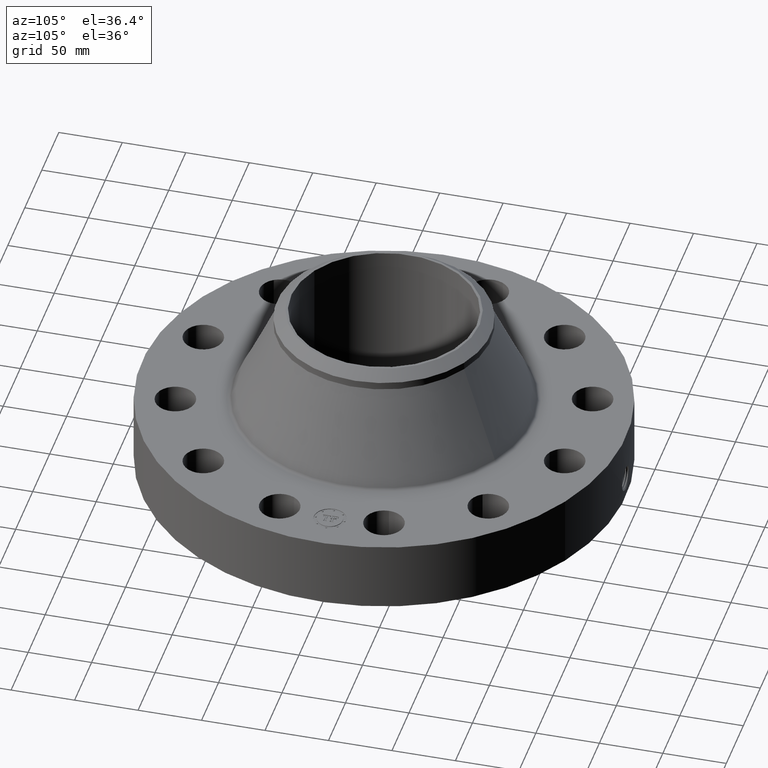
[diagram: clean part render]
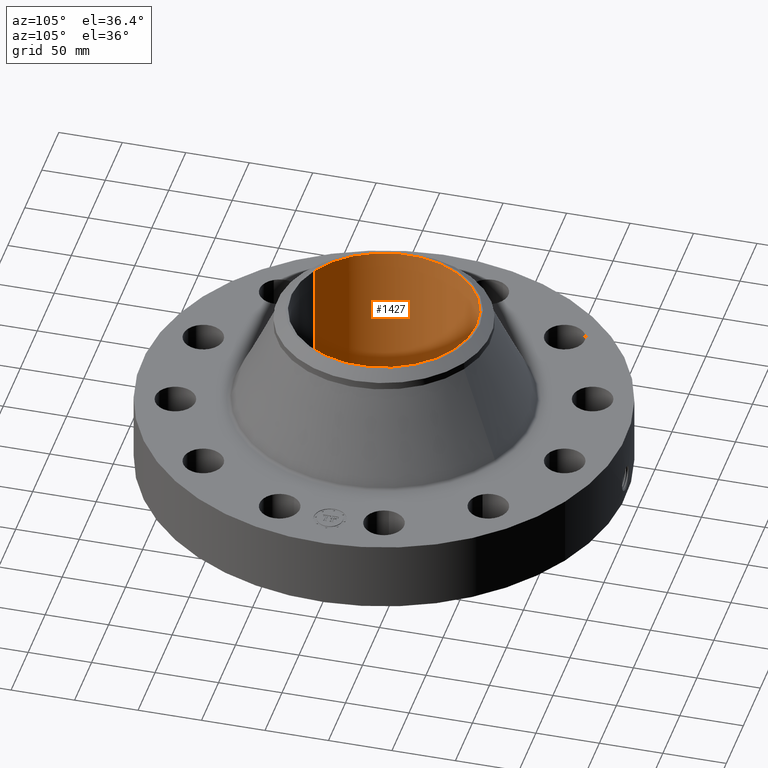
[diagram: same view with one face highlighted and labeled with its STEP entity id]
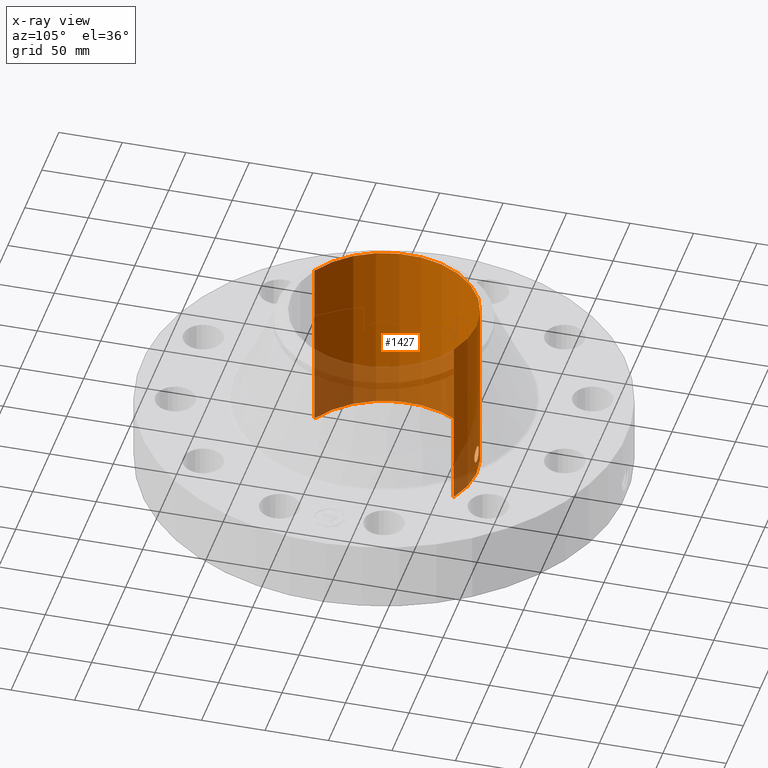
[diagram: x-ray of the same camera — body ghosted, the highlighted face saturated]
A machine part, auxiliary view. The second image highlights one B-rep face of the part: STEP entity #1427.
The next image is the same camera in x-ray: the body ghosted, the highlighted face saturated — about 29% of this face is hidden behind the body in this view.
In plain terms, the highlighted cylindrical surface (partial cylindrical patch) has radius 73.1647 mm, axis along (0, 0, -1).
Its self-contained STEP definition (entity closure, byte-faithful):
#259=AXIS2_PLACEMENT_3D('Circle Axis2P3D',#257,#258,$) ;
#1304=AXIS2_PLACEMENT_3D('Cylinder Axis2P3D',#1301,#1302,#1303) ;
#1376=AXIS2_PLACEMENT_3D('Circle Axis2P3D',#1374,#1375,$) ;
#252=CARTESIAN_POINT('Vertex',(1.38098526395,2.52787656954,0.250000000001)) ;
#254=CARTESIAN_POINT('Vertex',(-1.38098526395,-2.52787656954,0.250000000001)) ;
#257=CARTESIAN_POINT('Axis2P3D Location',(0.,0.,0.250000000001)) ;
#1301=CARTESIAN_POINT('Axis2P3D Location',(0.,0.,3.00000000001)) ;
#1310=CARTESIAN_POINT('Vertex',(1.38098526395,2.52787656954,5.75000000002)) ;
#1312=CARTESIAN_POINT('Vertex',(-1.38098526395,-2.52787656954,5.75000000002)) ;
#1315=CARTESIAN_POINT('Line Origine',(1.38098526395,2.52787656954,3.00000000001)) ;
#1320=CARTESIAN_POINT('Line Origine',(-1.38098526395,-2.52787656954,3.00000000001)) ;
#1374=CARTESIAN_POINT('Axis2P3D Location',(0.,0.,5.75000000002)) ;
#1386=CARTESIAN_POINT('Control Point',(0.219395640473,2.87213262281,1.05985638466)) ;
#1387=CARTESIAN_POINT('Control Point',(0.206922351999,2.87308542878,1.08268858606)) ;
#1388=CARTESIAN_POINT('Control Point',(0.191481712066,2.87419679655,1.10389307756)) ;
#1389=CARTESIAN_POINT('Control Point',(0.173354194287,2.87538062812,1.12296014847)) ;
#1390=CARTESIAN_POINT('Control Point',(0.112199588933,2.87880172466,1.17240469316)) ;
#1391=CARTESIAN_POINT('Control Point',(0.0350911619158,2.88102435561,1.19594771471)) ;
#1392=CARTESIAN_POINT('Control Point',(-0.0194446568636,2.88119275664,1.19761224593)) ;
#1393=CARTESIAN_POINT('Control Point',(-0.123995866117,2.87875349424,1.17252930704)) ;
#1394=CARTESIAN_POINT('Control Point',(-0.20302008793,2.87369160983,1.09975234341)) ;
#1395=CARTESIAN_POINT('Control Point',(-0.232033505249,2.87119266303,1.05361428798)) ;
#1396=CARTESIAN_POINT('Control Point',(-0.25581045403,2.86912592234,0.975428323767)) ;
#1397=CARTESIAN_POINT('Control Point',(-0.248335741922,2.86977503044,0.895964558502)) ;
#1398=CARTESIAN_POINT('Control Point',(-0.242100701747,2.87032479534,0.869317071092)) ;
#1399=CARTESIAN_POINT('Control Point',(-0.232348019503,2.87114322021,0.843852786133)) ;
#1400=CARTESIAN_POINT('Control Point',(-0.219395640473,2.87213262281,0.820143615352)) ;
#1401=CARTESIAN_POINT('Vertex',(0.219395640473,2.87213262281,1.05985638466)) ;
#1403=CARTESIAN_POINT('Vertex',(-0.219395640473,2.87213262281,0.820143615352)) ;
#1407=CARTESIAN_POINT('Control Point',(-0.219395640473,2.87213262281,0.820143615352)) ;
#1408=CARTESIAN_POINT('Control Point',(-0.206922351995,2.87308542878,0.797311413944)) ;
#1409=CARTESIAN_POINT('Control Point',(-0.191481712058,2.87419679655,0.776106922433)) ;
#1410=CARTESIAN_POINT('Control Point',(-0.173354194298,2.87538062812,0.757039851545)) ;
#1411=CARTESIAN_POINT('Control Point',(-0.112199588946,2.87880172466,0.707595306856)) ;
#1412=CARTESIAN_POINT('Control Point',(-0.0350911619317,2.88102435561,0.6840522853)) ;
#1413=CARTESIAN_POINT('Control Point',(0.0194446568755,2.88119275664,0.682387754085)) ;
#1414=CARTESIAN_POINT('Control Point',(0.123995866122,2.87875349424,0.707470692974)) ;
#1415=CARTESIAN_POINT('Control Point',(0.20302008793,2.87369160983,0.780247656595)) ;
#1416=CARTESIAN_POINT('Control Point',(0.232033505246,2.87119266303,0.826385712029)) ;
#1417=CARTESIAN_POINT('Control Point',(0.255810454031,2.86912592234,0.904571676238)) ;
#1418=CARTESIAN_POINT('Control Point',(0.248335741922,2.86977503044,0.984035441505)) ;
#1419=CARTESIAN_POINT('Control Point',(0.242100701748,2.87032479534,1.01068292892)) ;
#1420=CARTESIAN_POINT('Control Point',(0.232348019503,2.87114322021,1.03614721387)) ;
#1421=CARTESIAN_POINT('Control Point',(0.219395640473,2.87213262281,1.05985638466)) ;
#258=DIRECTION('Axis2P3D Direction',(0.,0.,-0.0393700787402)) ;
#1302=DIRECTION('Axis2P3D Direction',(0.,0.,-0.0393700787402)) ;
#1303=DIRECTION('Axis2P3D XDirection',(-0.0188750212049,-0.0345504945626,0.)) ;
#1316=DIRECTION('Vector Direction',(0.,0.,-0.0393700787402)) ;
#1321=DIRECTION('Vector Direction',(0.,0.,-0.0393700787402)) ;
#1375=DIRECTION('Axis2P3D Direction',(0.,0.,-0.0393700787402)) ;
#1317=VECTOR('Line Direction',#1316,0.0393700787402) ;
#1322=VECTOR('Line Direction',#1321,0.0393700787402) ;
#1380=ORIENTED_EDGE('',*,*,#1378,.F.) ;
#1381=ORIENTED_EDGE('',*,*,#1324,.T.) ;
#1382=ORIENTED_EDGE('',*,*,#261,.T.) ;
#1383=ORIENTED_EDGE('',*,*,#1319,.F.) ;
#1424=ORIENTED_EDGE('',*,*,#1405,.F.) ;
#1425=ORIENTED_EDGE('',*,*,#1422,.F.) ;
#1426=FACE_BOUND('',#1423,.T.) ;
#1427=ADVANCED_FACE('PartBody',(#1384,#1426),#1305,.F.) ;
#1385=B_SPLINE_CURVE_WITH_KNOTS('',5,(#1386,#1387,#1388,#1389,#1390,#1391,#1392,#1393,#1394,#1395,#1396,#1397,#1398,#1399,#1400),.UNSPECIFIED.,.F.,.U.,(6,3,3,3,6),(0.,4.67594679009,14.0198370765,23.3697183265,28.225265063),.UNSPECIFIED.) ;
#1406=B_SPLINE_CURVE_WITH_KNOTS('',5,(#1407,#1408,#1409,#1410,#1411,#1412,#1413,#1414,#1415,#1416,#1417,#1418,#1419,#1420,#1421),.UNSPECIFIED.,.F.,.U.,(6,3,3,3,6),(0.,4.67594679125,14.0198370764,23.3697183266,28.2252650631),.UNSPECIFIED.) ;
#260=CIRCLE('generated circle',#259,2.88050000001) ;
#1377=CIRCLE('generated circle',#1376,2.88050000001) ;
#1305=CYLINDRICAL_SURFACE('generated cylinder',#1304,2.88050000001) ;
#261=EDGE_CURVE('',#255,#253,#260,.T.) ;
#1319=EDGE_CURVE('',#1311,#253,#1318,.T.) ;
#1324=EDGE_CURVE('',#1313,#255,#1323,.T.) ;
#1378=EDGE_CURVE('',#1313,#1311,#1377,.T.) ;
#1405=EDGE_CURVE('',#1402,#1404,#1385,.T.) ;
#1422=EDGE_CURVE('',#1404,#1402,#1406,.T.) ;
#1379=EDGE_LOOP('',(#1380,#1381,#1382,#1383)) ;
#1423=EDGE_LOOP('',(#1424,#1425)) ;
#1384=FACE_OUTER_BOUND('',#1379,.T.) ;
#1318=LINE('Line',#1315,#1317) ;
#1323=LINE('Line',#1320,#1322) ;
#253=VERTEX_POINT('',#252) ;
#255=VERTEX_POINT('',#254) ;
#1311=VERTEX_POINT('',#1310) ;
#1313=VERTEX_POINT('',#1312) ;
#1402=VERTEX_POINT('',#1401) ;
#1404=VERTEX_POINT('',#1403) ;